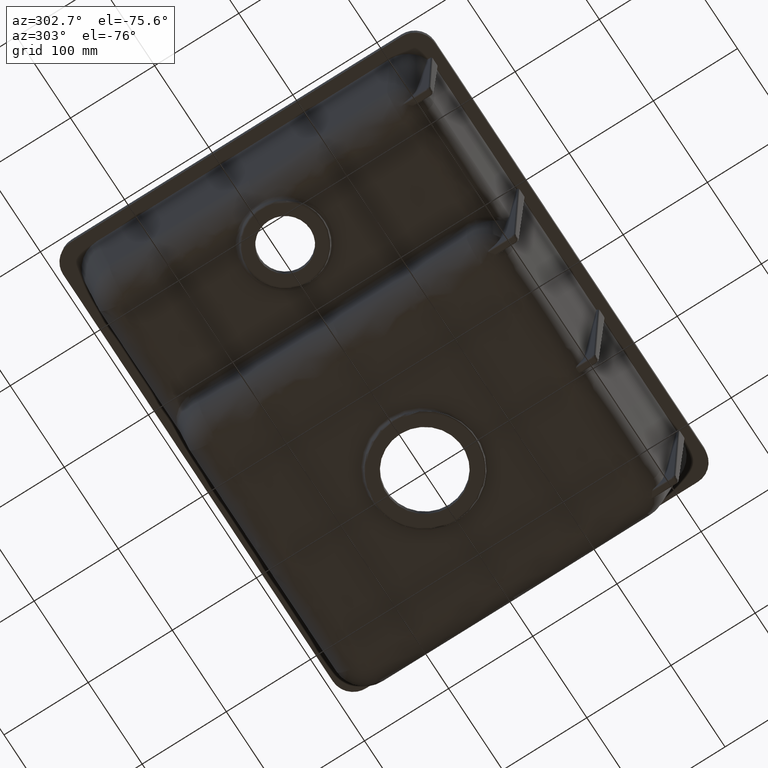
[diagram: clean part render]
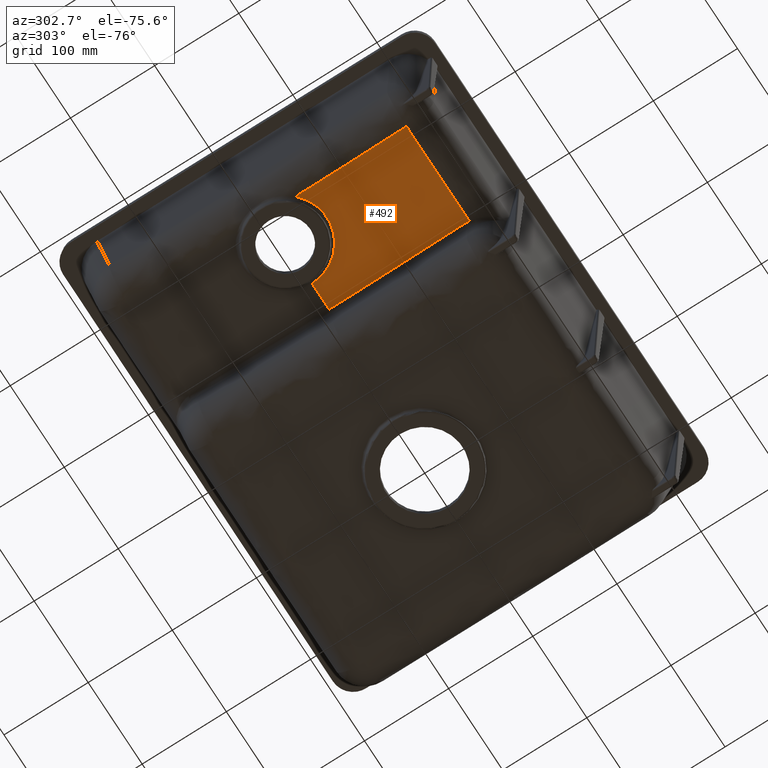
[diagram: same view with one face highlighted and labeled with its STEP entity id]
A machine part, auxiliary view. The second image highlights one B-rep face of the part: STEP entity #492.
In plain terms, the highlighted face is a freeform B-spline surface patch.
Its self-contained STEP definition (entity closure, byte-faithful):
#56=B_SPLINE_SURFACE_WITH_KNOTS('',3,3,((#4859,#4860,#4861,#4862),(#4863,
#4864,#4865,#4866),(#4867,#4868,#4869,#4870),(#4871,#4872,#4873,#4874),
(#4875,#4876,#4877,#4878),(#4879,#4880,#4881,#4882),(#4883,#4884,#4885,
#4886),(#4887,#4888,#4889,#4890),(#4891,#4892,#4893,#4894),(#4895,#4896,
#4897,#4898),(#4899,#4900,#4901,#4902),(#4903,#4904,#4905,#4906),(#4907,
#4908,#4909,#4910),(#4911,#4912,#4913,#4914),(#4915,#4916,#4917,#4918),
(#4919,#4920,#4921,#4922),(#4923,#4924,#4925,#4926),(#4927,#4928,#4929,
#4930),(#4931,#4932,#4933,#4934),(#4935,#4936,#4937,#4938),(#4939,#4940,
#4941,#4942),(#4943,#4944,#4945,#4946),(#4947,#4948,#4949,#4950),(#4951,
#4952,#4953,#4954),(#4955,#4956,#4957,#4958),(#4959,#4960,#4961,#4962),
(#4963,#4964,#4965,#4966),(#4967,#4968,#4969,#4970)),.UNSPECIFIED.,.F.,
 .F.,.F.,(4,2,2,2,2,2,2,2,2,2,2,2,2,4),(4,4),(0.,0.0625,0.125,0.25,0.3125,
0.34375,0.375,0.5,0.5625,0.625,0.6875,0.75,0.875,1.),(0.,1.),
 .UNSPECIFIED.);
#210=FACE_OUTER_BOUND('',#753,.T.);
#492=ADVANCED_FACE('',(#210),#56,.T.);
#753=EDGE_LOOP('',(#1256,#1257,#1258,#1259,#1260,#1261,#1262));
#935=B_SPLINE_CURVE_WITH_KNOTS('',3,(#3983,#3984,#3985,#3986,#3987,#3988,
#3989,#3990,#3991,#3992,#3993,#3994,#3995,#3996),.UNSPECIFIED.,.F.,.F.,
(4,2,2,2,2,2,4),(0.,0.249999999999999,0.374999999999998,0.437499999999998,
0.468749999999998,0.499999999999999,1.),.UNSPECIFIED.);
#955=B_SPLINE_CURVE_WITH_KNOTS('',3,(#4569,#4570,#4571,#4572,#4573,#4574,
#4575,#4576,#4577,#4578,#4579,#4580,#4581,#4582,#4583,#4584,#4585,#4586,
#4587,#4588),.UNSPECIFIED.,.F.,.F.,(4,2,2,2,2,2,2,2,2,4),(0.,0.124999999999999,
0.249999999999997,0.312499999999996,0.374999999999996,0.499999999999997,
0.624999999999997,0.749999999999998,0.874999999999999,1.),.UNSPECIFIED.);
#961=B_SPLINE_CURVE_WITH_KNOTS('',3,(#4746,#4747,#4748,#4749,#4750,#4751,
#4752,#4753,#4754,#4755,#4756,#4757,#4758,#4759,#4760,#4761,#4762,#4763,
#4764,#4765,#4766,#4767,#4768,#4769,#4770,#4771,#4772,#4773,#4774,#4775,
#4776,#4777,#4778,#4779,#4780,#4781,#4782,#4783,#4784,#4785,#4786),
 .UNSPECIFIED.,.F.,.F.,(4,2,2,2,2,1,2,2,2,2,2,1,1,2,2,2,2,2,1,1,2,2,4),
(0.,0.124999999999995,0.187499999999993,0.218749999999992,0.234374999999992,
0.242187499999991,0.246093749999991,0.249999999999991,0.374999999999988,
0.437499999999986,0.468749999999985,0.484374999999985,0.492187499999984,
0.496093749999984,0.499999999999984,0.624999999999986,0.687499999999987,
0.718749999999988,0.734374999999988,0.742187499999989,0.746093749999989,
0.749999999999989,1.),.UNSPECIFIED.);
#962=B_SPLINE_CURVE_WITH_KNOTS('',3,(#4789,#4790,#4791,#4792),
 .UNSPECIFIED.,.F.,.F.,(4,4),(0.,1.),.UNSPECIFIED.);
#963=B_SPLINE_CURVE_WITH_KNOTS('',3,(#4793,#4794,#4795,#4796,#4797,#4798,
#4799,#4800,#4801,#4802,#4803,#4804,#4805,#4806,#4807,#4808,#4809,#4810,
#4811,#4812,#4813,#4814,#4815,#4816,#4817,#4818,#4819,#4820,#4821,#4822,
#4823,#4824,#4825,#4826,#4827,#4828,#4829,#4830,#4831,#4832,#4833,#4834,
#4835,#4836,#4837,#4838,#4839,#4840,#4841,#4842,#4843,#4844,#4845,#4846,
#4847,#4848,#4849),.UNSPECIFIED.,.F.,.F.,(4,2,2,2,1,1,2,2,2,2,2,1,1,2,2,
2,2,1,2,2,2,2,1,2,2,2,2,2,1,2,2,4),(0.,0.124999999999987,0.187499999999981,
0.218749999999978,0.234374999999976,0.242187499999975,0.246093749999975,
0.249999999999974,0.37499999999997,0.437499999999968,0.468749999999967,
0.484374999999967,0.492187499999967,0.496093749999967,0.499999999999967,
0.562499999999971,0.593749999999973,0.609374999999974,0.617187499999975,
0.624999999999975,0.687499999999979,0.718749999999981,0.734374999999982,
0.742187499999982,0.749999999999983,0.812499999999988,0.84374999999999,
0.859374999999992,0.867187499999992,0.871093749999993,0.874999999999993,
1.),.UNSPECIFIED.);
#964=B_SPLINE_CURVE_WITH_KNOTS('',3,(#4850,#4851,#4852,#4853),
 .UNSPECIFIED.,.F.,.F.,(4,4),(0.,1.),.UNSPECIFIED.);
#965=B_SPLINE_CURVE_WITH_KNOTS('',3,(#4855,#4856,#4857,#4858),
 .UNSPECIFIED.,.F.,.F.,(4,4),(0.,1.),.UNSPECIFIED.);
#1256=ORIENTED_EDGE('',*,*,#2367,.T.);
#1257=ORIENTED_EDGE('',*,*,#2368,.T.);
#1258=ORIENTED_EDGE('',*,*,#2313,.T.);
#1259=ORIENTED_EDGE('',*,*,#2369,.T.);
#1260=ORIENTED_EDGE('',*,*,#2353,.T.);
#1261=ORIENTED_EDGE('',*,*,#2370,.F.);
#1262=ORIENTED_EDGE('',*,*,#2371,.T.);
#2041=VERTEX_POINT('',#3975);
#2043=VERTEX_POINT('',#3982);
#2066=VERTEX_POINT('',#4366);
#2072=VERTEX_POINT('',#4484);
#2084=VERTEX_POINT('',#4787);
#2085=VERTEX_POINT('',#4788);
#2086=VERTEX_POINT('',#4854);
#2313=EDGE_CURVE('',#2041,#2043,#935,.T.);
#2353=EDGE_CURVE('',#2066,#2072,#955,.T.);
#2367=EDGE_CURVE('',#2084,#2085,#961,.T.);
#2368=EDGE_CURVE('',#2085,#2041,#962,.T.);
#2369=EDGE_CURVE('',#2043,#2066,#963,.T.);
#2370=EDGE_CURVE('',#2086,#2072,#964,.T.);
#2371=EDGE_CURVE('',#2086,#2084,#965,.T.);
#3975=CARTESIAN_POINT('',(-176.964456876952,-166.452582312166,-127.923734239926));
#3982=CARTESIAN_POINT('',(-293.226474482799,-166.501707001497,-128.585918841775));
#3983=CARTESIAN_POINT('',(-176.96445737304,-166.452852972989,-127.923694214781));
#3984=CARTESIAN_POINT('',(-187.010015845275,-166.462869704912,-128.115938924279));
#3985=CARTESIAN_POINT('',(-196.802232938002,-166.477173342721,-128.274422624157));
#3986=CARTESIAN_POINT('',(-211.24824845461,-166.487471975807,-128.461506659543));
#3987=CARTESIAN_POINT('',(-216.024744802025,-166.491154513136,-128.515427752267));
#3988=CARTESIAN_POINT('',(-223.154875165384,-166.498178450262,-128.583649012745));
#3989=CARTESIAN_POINT('',(-225.525816044325,-166.500712914673,-128.604279369802));
#3990=CARTESIAN_POINT('',(-229.076412684884,-166.504355877023,-128.632059810737));
#3991=CARTESIAN_POINT('',(-230.258974343892,-166.505539233637,-128.64079244194));
#3992=CARTESIAN_POINT('',(-232.62260661255,-166.507712083741,-128.657202672796));
#3993=CARTESIAN_POINT('',(-233.771520420506,-166.508679690637,-128.664685509865));
#3994=CARTESIAN_POINT('',(-254.387364824648,-166.522758618336,-128.789547899694));
#3995=CARTESIAN_POINT('',(-273.642578692747,-166.517605074117,-128.76072995739));
#3996=CARTESIAN_POINT('',(-293.226072798336,-166.501707809072,-128.585911407593));
#4366=CARTESIAN_POINT('',(-293.418554230145,-34.9930937256949,-133.850230019672));
#4484=CARTESIAN_POINT('',(-208.803564244212,0.,-133.850230019732));
#4569=CARTESIAN_POINT('',(-293.418554815,-34.9930930642775,-133.850228833807));
#4570=CARTESIAN_POINT('',(-289.793055837085,-38.6262537944203,-133.850228883221));
#4571=CARTESIAN_POINT('',(-285.594052335672,-41.6813835097078,-133.850228932635));
#4572=CARTESIAN_POINT('',(-276.694034714498,-46.2918994552667,-133.850229031463));
#4573=CARTESIAN_POINT('',(-272.002387754683,-47.853932012553,-133.850229080877));
#4574=CARTESIAN_POINT('',(-265.097774506618,-49.1369570098442,-133.850229154997));
#4575=CARTESIAN_POINT('',(-262.813992750974,-49.3915827681491,-133.850229179704));
#4576=CARTESIAN_POINT('',(-258.364140271183,-49.5935931867147,-133.850229229118));
#4577=CARTESIAN_POINT('',(-256.184812689611,-49.5483441484309,-133.850229253825));
#4578=CARTESIAN_POINT('',(-249.407567287704,-48.9402209724641,-133.850229327946));
#4579=CARTESIAN_POINT('',(-244.711528336831,-47.8837288498483,-133.85022937736));
#4580=CARTESIAN_POINT('',(-235.558489871828,-44.2654584161505,-133.850229476188));
#4581=CARTESIAN_POINT('',(-231.111249214222,-41.7010689062397,-133.850229525601));
#4582=CARTESIAN_POINT('',(-223.160653507134,-35.2513419932306,-133.850229624429));
#4583=CARTESIAN_POINT('',(-219.666573636073,-31.3718921037385,-133.850229673843));
#4584=CARTESIAN_POINT('',(-214.10716766273,-22.8722854832415,-133.850229772671));
#4585=CARTESIAN_POINT('',(-212.041894026679,-18.2629908122621,-133.850229822085));
#4586=CARTESIAN_POINT('',(-209.39366017639,-9.01402671397702,-133.850229920912));
#4587=CARTESIAN_POINT('',(-208.803563112613,-4.38102742814984,-133.850229970326));
#4588=CARTESIAN_POINT('',(-208.803564244377,-1.38351151365868E-13,-133.85023001974));
#4746=CARTESIAN_POINT('',(-176.956488945377,-6.6930257784281E-7,-132.459756683307));
#4747=CARTESIAN_POINT('',(-176.952193372384,-6.58968978575969,-132.459569132137));
#4748=CARTESIAN_POINT('',(-176.962935045715,-13.1180820890233,-132.42516467801));
#4749=CARTESIAN_POINT('',(-176.96074951962,-23.1055455688348,-132.322232642383));
#4750=CARTESIAN_POINT('',(-176.961948092636,-26.4701639847633,-132.279367738101));
#4751=CARTESIAN_POINT('',(-176.966600042602,-31.598341061756,-132.20223904307));
#4752=CARTESIAN_POINT('',(-176.968276141499,-33.3212574179961,-132.174390921624));
#4753=CARTESIAN_POINT('',(-176.97078650794,-35.9292783947458,-132.129410904804));
#4754=CARTESIAN_POINT('',(-176.971629940756,-36.8025574939614,-132.113882926755));
#4755=CARTESIAN_POINT('',(-176.972937002876,-38.118778799563,-132.089789001019));
#4756=CARTESIAN_POINT('',(-176.973601517953,-38.7784648117023,-132.077541548485));
#4757=CARTESIAN_POINT('',(-176.974292642857,-39.4405848986052,-132.064993361453));
#4758=CARTESIAN_POINT('',(-176.974760684091,-39.8825468721053,-132.056561073542));
#4759=CARTESIAN_POINT('',(-176.975031893449,-40.1345174103982,-132.051717687152));
#4760=CARTESIAN_POINT('',(-176.98191097778,-46.431515951586,-131.929975857509));
#4761=CARTESIAN_POINT('',(-176.979762635406,-52.7799152594119,-131.785365121803));
#4762=CARTESIAN_POINT('',(-176.997719244365,-62.7714724590502,-131.528611939619));
#4763=CARTESIAN_POINT('',(-177.005481429767,-66.1796752976054,-131.436388032454));
#4764=CARTESIAN_POINT('',(-177.018741204097,-71.4165875633393,-131.28809290205));
#4765=CARTESIAN_POINT('',(-177.023432957057,-73.1829512160727,-131.237001313639));
#4766=CARTESIAN_POINT('',(-177.030482471855,-75.8642118876181,-131.157874113609));
#4767=CARTESIAN_POINT('',(-177.033989610948,-77.2127731133576,-131.117688059241));
#4768=CARTESIAN_POINT('',(-177.03785030029,-78.800156046002,-131.069715034026));
#4769=CARTESIAN_POINT('',(-177.039432159326,-79.4834932228953,-131.048921745694));
#4770=CARTESIAN_POINT('',(-177.040467930134,-79.9397265518707,-131.035007682276));
#4771=CARTESIAN_POINT('',(-177.041060214369,-80.2066980140231,-131.026844768508));
#4772=CARTESIAN_POINT('',(-177.054720496131,-86.4857921980697,-130.834489205874));
#4773=CARTESIAN_POINT('',(-177.064067315769,-92.9080360751101,-130.626844769042));
#4774=CARTESIAN_POINT('',(-177.091942656231,-103.071061367989,-130.283701367833));
#4775=CARTESIAN_POINT('',(-177.103281716943,-106.546531489536,-130.164040776436));
#4776=CARTESIAN_POINT('',(-177.121844492735,-111.893913028014,-129.976630702851));
#4777=CARTESIAN_POINT('',(-177.128270599581,-113.698727884375,-129.912840813907));
#4778=CARTESIAN_POINT('',(-177.137868580975,-116.439678836213,-129.815176183869));
#4779=CARTESIAN_POINT('',(-177.142654950762,-117.818585230197,-129.765848919694));
#4780=CARTESIAN_POINT('',(-177.148104659855,-119.44209433285,-129.707434283801));
#4781=CARTESIAN_POINT('',(-177.150397787739,-120.141054751785,-129.682213833914));
#4782=CARTESIAN_POINT('',(-177.151915540084,-120.607733259302,-129.665358954893));
#4783=CARTESIAN_POINT('',(-177.15281153942,-120.886104493918,-129.655294203149));
#4784=CARTESIAN_POINT('',(-177.192101391493,-133.194812993317,-129.209914468237));
#4785=CARTESIAN_POINT('',(-177.236259412211,-146.570783287996,-128.705119052979));
#4786=CARTESIAN_POINT('',(-177.288811178532,-161.236092480892,-128.134055961454));
#4787=CARTESIAN_POINT('',(-176.955464648924,-3.29014593347665E-10,-132.459711961558));
#4788=CARTESIAN_POINT('',(-177.289002531656,-161.236092922753,-128.134084910413));
#4789=CARTESIAN_POINT('',(-177.28920046542,-161.236091384829,-128.134063637702));
#4790=CARTESIAN_POINT('',(-177.295639501322,-162.974424129808,-128.066377490108));
#4791=CARTESIAN_POINT('',(-177.19071089805,-164.713279980228,-127.996266966767));
#4792=CARTESIAN_POINT('',(-176.96638649254,-166.452831055832,-127.92373206768));
#4793=CARTESIAN_POINT('',(-293.226875970481,-166.501705220416,-128.585904320487));
#4794=CARTESIAN_POINT('',(-293.209287168885,-160.351956080775,-128.84884924384));
#4795=CARTESIAN_POINT('',(-293.196047746173,-154.480205986751,-129.099269283487));
#4796=CARTESIAN_POINT('',(-293.177632608975,-146.089883570665,-129.456112017399));
#4797=CARTESIAN_POINT('',(-293.171801877179,-143.362654937577,-129.571928374443));
#4798=CARTESIAN_POINT('',(-293.163488439094,-139.376106617241,-129.740956078619));
#4799=CARTESIAN_POINT('',(-293.160793631017,-138.064639093428,-129.796515841446));
#4800=CARTESIAN_POINT('',(-293.156900473394,-136.12350238307,-129.878681277839));
#4801=CARTESIAN_POINT('',(-293.154991556372,-135.159450110765,-129.919470444073));
#4802=CARTESIAN_POINT('',(-293.152842162414,-134.046123106409,-129.966544088747));
#4803=CARTESIAN_POINT('',(-293.151939168465,-133.571425643102,-129.986608425907));
#4804=CARTESIAN_POINT('',(-293.151341388661,-133.25550344934,-129.999960188018));
#4805=CARTESIAN_POINT('',(-293.151100385447,-133.12762097564,-130.005364388682));
#4806=CARTESIAN_POINT('',(-293.139538450967,-126.949177300037,-130.266423014534));
#4807=CARTESIAN_POINT('',(-293.132997716236,-121.280336086803,-130.504818803594));
#4808=CARTESIAN_POINT('',(-293.123853542935,-113.260710396199,-130.840284533173));
#4809=CARTESIAN_POINT('',(-293.121053804526,-110.66809231105,-130.948418450698));
#4810=CARTESIAN_POINT('',(-293.117674725164,-106.89986236934,-131.105087338481));
#4811=CARTESIAN_POINT('',(-293.116693766646,-105.663900233595,-131.156388302992));
#4812=CARTESIAN_POINT('',(-293.115574332426,-103.840087846394,-131.231956752632));
#4813=CARTESIAN_POINT('',(-293.115103428205,-102.935714157795,-131.269395228171));
#4814=CARTESIAN_POINT('',(-293.114747329858,-101.893782210228,-131.312468388391));
#4815=CARTESIAN_POINT('',(-293.114640740309,-101.450060884953,-131.330798658218));
#4816=CARTESIAN_POINT('',(-293.114580434598,-101.154873388324,-131.342990025664));
#4817=CARTESIAN_POINT('',(-293.114560795731,-101.04706884122,-131.347441721902));
#4818=CARTESIAN_POINT('',(-293.114148231439,-97.8775387275503,-131.478281415188));
#4819=CARTESIAN_POINT('',(-293.115588464224,-94.9953791811796,-131.596657309926));
#4820=CARTESIAN_POINT('',(-293.118807222751,-90.823338022405,-131.767070133027));
#4821=CARTESIAN_POINT('',(-293.120078682944,-89.457853485941,-131.822682570894));
#4822=CARTESIAN_POINT('',(-293.122272463756,-87.4473543388284,-131.904313472942));
#4823=CARTESIAN_POINT('',(-293.123443078603,-86.4515361822979,-131.944681985279));
#4824=CARTESIAN_POINT('',(-293.1247409375,-85.4698478569792,-131.984380089584));
#4825=CARTESIAN_POINT('',(-293.12563759917,-84.8185266426042,-132.010696512891));
#4826=CARTESIAN_POINT('',(-293.126024317756,-84.5461984805717,-132.021692314607));
#4827=CARTESIAN_POINT('',(-293.131052504679,-81.1776090484315,-132.157566684829));
#4828=CARTESIAN_POINT('',(-293.137642817581,-78.2990099042952,-132.272695421809));
#4829=CARTESIAN_POINT('',(-293.148822389823,-74.1537171173065,-132.436915805788));
#4830=CARTESIAN_POINT('',(-293.152804881226,-72.8007104221743,-132.490243813532));
#4831=CARTESIAN_POINT('',(-293.159286878444,-70.8141069407337,-132.568117644776));
#4832=CARTESIAN_POINT('',(-293.162658674417,-69.831530512954,-132.606525015305));
#4833=CARTESIAN_POINT('',(-293.166283513982,-68.8649858424254,-132.644138068193));
#4834=CARTESIAN_POINT('',(-293.16876492186,-68.2241780948461,-132.669036921755));
#4835=CARTESIAN_POINT('',(-293.169825212371,-67.957005619514,-132.679405091401));
#4836=CARTESIAN_POINT('',(-293.183530057173,-64.6422525211235,-132.807798293715));
#4837=CARTESIAN_POINT('',(-293.197691864428,-61.8213446146603,-132.915391264231));
#4838=CARTESIAN_POINT('',(-293.219435638872,-57.7777162533161,-133.06697923936));
#4839=CARTESIAN_POINT('',(-293.226856717026,-56.4610775202563,-133.115874984296));
#4840=CARTESIAN_POINT('',(-293.238606064446,-54.5325574342223,-133.186768231538));
#4841=CARTESIAN_POINT('',(-293.242629614577,-53.897454946046,-133.209990918925));
#4842=CARTESIAN_POINT('',(-293.248906783507,-52.9563340412307,-133.244212357465));
#4843=CARTESIAN_POINT('',(-293.252106201364,-52.4886565577675,-133.2611699286));
#4844=CARTESIAN_POINT('',(-293.255415410549,-52.0252874961239,-133.277897777533));
#4845=CARTESIAN_POINT('',(-293.257648233362,-51.7173302700328,-133.288998627443));
#4846=CARTESIAN_POINT('',(-293.258518613759,-51.598514689201,-133.293277009142));
#4847=CARTESIAN_POINT('',(-293.304837931162,-45.4041044111552,-133.515891515861));
#4848=CARTESIAN_POINT('',(-293.359315640912,-39.9465432711315,-133.699293492704));
#4849=CARTESIAN_POINT('',(-293.418554815003,-34.9930930640392,-133.850228833814));
#4850=CARTESIAN_POINT('',(-180.541968281507,1.27884138035572E-13,-132.616302091901));
#4851=CARTESIAN_POINT('',(-189.962500269075,1.18513231230239E-13,-133.027611401178));
#4852=CARTESIAN_POINT('',(-199.383032256644,1.57477153570825E-13,-133.438920710455));
#4853=CARTESIAN_POINT('',(-208.803564244212,1.41156075431187E-13,-133.850230019732));
#4854=CARTESIAN_POINT('',(-180.541968281507,-1.20403687020598E-9,-132.616302091901));
#4855=CARTESIAN_POINT('',(-180.541968281507,1.26028495559533E-13,-132.616302091901));
#4856=CARTESIAN_POINT('',(-179.346656078956,1.25483808327338E-13,-132.564113634068));
#4857=CARTESIAN_POINT('',(-178.151343876405,1.24947743006304E-13,-132.511925176234));
#4858=CARTESIAN_POINT('',(-176.956031673855,1.2443536505891E-13,-132.459736718401));
#4859=CARTESIAN_POINT('',(-293.936662545748,-34.4660167800293,-133.85023001974));
#4860=CARTESIAN_POINT('',(-326.634952053084,-66.1318346280145,-131.862864586272));
#4861=CARTESIAN_POINT('',(-359.333241560421,-97.7976524759998,-129.875499152805));
#4862=CARTESIAN_POINT('',(-392.031531067757,-129.463470323985,-127.888133719338));
#4863=CARTESIAN_POINT('',(-292.140724164066,-36.3205121675632,-133.85023001974));
#4864=CARTESIAN_POINT('',(-323.18898668907,-69.6901565272213,-131.862864586272));
#4865=CARTESIAN_POINT('',(-354.237249214075,-103.059800886879,-129.875499152805));
#4866=CARTESIAN_POINT('',(-385.285511739079,-136.429445246538,-127.888133719338));
#4867=CARTESIAN_POINT('',(-290.197948989727,-38.0348351286552,-133.85023001974));
#4868=CARTESIAN_POINT('',(-319.461277526483,-72.9795219124211,-131.862864586272));
#4869=CARTESIAN_POINT('',(-348.724606063239,-107.924208696187,-129.875499152805));
#4870=CARTESIAN_POINT('',(-377.987934599995,-142.868895479953,-127.888133719338));
#4871=CARTESIAN_POINT('',(-286.093044545675,-41.1252925825565,-133.85023001974));
#4872=CARTESIAN_POINT('',(-311.584972481128,-78.9093519409592,-131.862864586272));
#4873=CARTESIAN_POINT('',(-337.076900416582,-116.693411299362,-129.875499152805));
#4874=CARTESIAN_POINT('',(-362.568828352035,-154.477470657765,-127.888133719338));
#4875=CARTESIAN_POINT('',(-283.931265649347,-42.501292427961,-133.85023001974));
#4876=CARTESIAN_POINT('',(-307.437048878969,-81.5495582289452,-131.862864586272));
#4877=CARTESIAN_POINT('',(-330.94283210859,-120.59782402993,-129.875499152805));
#4878=CARTESIAN_POINT('',(-354.448615338212,-159.646089830914,-127.888133719338));
#4879=CARTESIAN_POINT('',(-277.247761177251,-46.074094095969,-133.85023001974));
#4880=CARTESIAN_POINT('',(-294.613042690346,-88.4048885264777,-131.862864586272));
#4881=CARTESIAN_POINT('',(-311.978324203442,-130.735682956987,-129.875499152805));
#4882=CARTESIAN_POINT('',(-329.343605716537,-173.066477387495,-127.888133719338));
#4883=CARTESIAN_POINT('',(-272.53311317082,-47.7034105225901,-133.85023001974));
#4884=CARTESIAN_POINT('',(-285.56678926685,-91.531147216877,-131.862864586272));
#4885=CARTESIAN_POINT('',(-298.600465362881,-135.358883911164,-129.875499152805));
#4886=CARTESIAN_POINT('',(-311.634141458912,-179.186620605451,-127.888133719338));
#4887=CARTESIAN_POINT('',(-265.578572877418,-49.0695760162048,-133.85023001974));
#4888=CARTESIAN_POINT('',(-272.222731799103,-94.1524837953057,-131.862864586272));
#4889=CARTESIAN_POINT('',(-278.866890720787,-139.235391574407,-129.875499152805));
#4890=CARTESIAN_POINT('',(-285.511049642471,-184.318299353508,-127.888133719338));
#4891=CARTESIAN_POINT('',(-263.279030932583,-49.3485935222647,-133.85023001974));
#4892=CARTESIAN_POINT('',(-267.810474688378,-94.6878499702497,-131.862864586272));
#4893=CARTESIAN_POINT('',(-272.341918444173,-140.027106418235,-129.875499152805));
#4894=CARTESIAN_POINT('',(-276.873362199968,-185.36636286622,-127.888133719338));
#4895=CARTESIAN_POINT('',(-259.906348264801,-49.5315564112559,-133.85023001974));
#4896=CARTESIAN_POINT('',(-261.339123680165,-95.0389108890397,-131.862864586272));
#4897=CARTESIAN_POINT('',(-262.771899095529,-140.546265366823,-129.875499152805));
#4898=CARTESIAN_POINT('',(-264.204674510893,-186.053619844607,-127.888133719338));
#4899=CARTESIAN_POINT('',(-258.80319768105,-49.5535912095721,-133.85023001974));
#4900=CARTESIAN_POINT('',(-259.222448218652,-95.0811902637526,-131.862864586272));
#4901=CARTESIAN_POINT('',(-259.641698756253,-140.608789317933,-129.875499152805));
#4902=CARTESIAN_POINT('',(-260.060949293854,-186.136388372114,-127.888133719338));
#4903=CARTESIAN_POINT('',(-256.587810410685,-49.5244619662187,-133.85023001974));
#4904=CARTESIAN_POINT('',(-254.971663292274,-95.0252983886753,-131.862864586272));
#4905=CARTESIAN_POINT('',(-253.355516173863,-140.526134811132,-129.875499152805));
#4906=CARTESIAN_POINT('',(-251.739369055452,-186.026971233588,-127.888133719338));
#4907=CARTESIAN_POINT('',(-255.465454209427,-49.4725211042554,-133.85023001974));
#4908=CARTESIAN_POINT('',(-252.818136960263,-94.9256366112289,-131.862864586272));
#4909=CARTESIAN_POINT('',(-250.170819711099,-140.378752118202,-129.875499152805));
#4910=CARTESIAN_POINT('',(-247.523502461935,-185.831867625176,-127.888133719338));
#4911=CARTESIAN_POINT('',(-249.797591548865,-49.0116815679073,-133.85023001974));
#4912=CARTESIAN_POINT('',(-241.942898357705,-94.0413985455907,-131.862864586272));
#4913=CARTESIAN_POINT('',(-234.088205166545,-139.071115523274,-129.875499152805));
#4914=CARTESIAN_POINT('',(-226.233511975385,-184.100832500958,-127.888133719338));
#4915=CARTESIAN_POINT('',(-245.074688866347,-47.9877432479877,-133.85023001974));
#4916=CARTESIAN_POINT('',(-232.880806234967,-92.0767119943603,-131.862864586272));
#4917=CARTESIAN_POINT('',(-220.686923603587,-136.165680740733,-129.875499152805));
#4918=CARTESIAN_POINT('',(-208.493040972207,-180.254649487105,-127.888133719338));
#4919=CARTESIAN_POINT('',(-238.15976706938,-45.3114657351177,-133.85023001974));
#4920=CARTESIAN_POINT('',(-219.61276694684,-86.9415917096645,-131.862864586272));
#4921=CARTESIAN_POINT('',(-201.0657668243,-128.571717684211,-129.875499152805));
#4922=CARTESIAN_POINT('',(-182.518766701759,-170.201843658758,-127.888133719338));
#4923=CARTESIAN_POINT('',(-235.885018324327,-44.2316673805852,-133.85023001974));
#4924=CARTESIAN_POINT('',(-215.24808190684,-84.8697234497117,-131.862864586272));
#4925=CARTESIAN_POINT('',(-194.611145489354,-125.507779518838,-129.875499152805));
#4926=CARTESIAN_POINT('',(-173.974209071868,-166.145835587965,-127.888133719338));
#4927=CARTESIAN_POINT('',(-231.484515681018,-41.7059836775847,-133.85023001974));
#4928=CARTESIAN_POINT('',(-206.804596402126,-80.0235557583443,-131.862864586272));
#4929=CARTESIAN_POINT('',(-182.124677123234,-118.341127839104,-129.875499152805));
#4930=CARTESIAN_POINT('',(-157.444757844342,-156.658699919864,-127.888133719338));
#4931=CARTESIAN_POINT('',(-229.35912335767,-40.2600966894543,-133.85023001974));
#4932=CARTESIAN_POINT('',(-202.726489710994,-77.2492531808198,-131.862864586272));
#4933=CARTESIAN_POINT('',(-176.093856064318,-114.238409672185,-129.875499152805));
#4934=CARTESIAN_POINT('',(-149.461222417642,-151.227566163551,-127.888133719338));
#4935=CARTESIAN_POINT('',(-225.343037093517,-37.0393281620208,-133.85023001974));
#4936=CARTESIAN_POINT('',(-195.020604973345,-71.0693881563599,-131.862864586272));
#4937=CARTESIAN_POINT('',(-164.698172853172,-105.099448150699,-129.875499152805));
#4938=CARTESIAN_POINT('',(-134.375740733,-139.129508145038,-127.888133719338));
#4939=CARTESIAN_POINT('',(-223.452681678745,-35.2646136474156,-133.85023001974));
#4940=CARTESIAN_POINT('',(-191.393476475272,-67.6641461888632,-131.862864586272));
#4941=CARTESIAN_POINT('',(-159.334271271799,-100.063678730311,-129.875499152805));
#4942=CARTESIAN_POINT('',(-127.275066068326,-132.463211271758,-127.888133719338));
#4943=CARTESIAN_POINT('',(-219.978082378511,-31.4489025295442,-133.85023001974));
#4944=CARTESIAN_POINT('',(-184.726572440838,-60.3427322220028,-131.862864586272));
#4945=CARTESIAN_POINT('',(-149.475062503164,-89.2365619144614,-129.875499152805));
#4946=CARTESIAN_POINT('',(-114.22355256549,-118.13039160692,-127.888133719338));
#4947=CARTESIAN_POINT('',(-218.394067304514,-29.4082096156226,-133.85023001974));
#4948=CARTESIAN_POINT('',(-181.687235937566,-56.4271429280226,-131.862864586272));
#4949=CARTESIAN_POINT('',(-144.980404570619,-83.4460762404227,-129.875499152805));
#4950=CARTESIAN_POINT('',(-108.273573203672,-110.465009552823,-127.888133719338));
#4951=CARTESIAN_POINT('',(-214.173629427716,-23.0083491739791,-133.85023001974));
#4952=CARTESIAN_POINT('',(-173.589250565264,-44.1473800801621,-131.862864586272));
#4953=CARTESIAN_POINT('',(-133.004871702812,-65.2864109863451,-129.875499152805));
#4954=CARTESIAN_POINT('',(-92.4204928403596,-86.4254418925282,-127.888133719338));
#4955=CARTESIAN_POINT('',(-212.082622911354,-18.3738640834885,-133.85023001974));
#4956=CARTESIAN_POINT('',(-169.577121805835,-35.2549396352334,-131.862864586272));
#4957=CARTESIAN_POINT('',(-127.071620700316,-52.1360151869783,-129.875499152805));
#4958=CARTESIAN_POINT('',(-84.5661195947971,-69.0170907387232,-127.888133719338));
#4959=CARTESIAN_POINT('',(-209.400764898173,-9.06963172451028,-133.85023001974));
#4960=CARTESIAN_POINT('',(-164.431293909463,-17.402399272603,-131.862864586272));
#4961=CARTESIAN_POINT('',(-119.461822920753,-25.7351668206957,-129.875499152805));
#4962=CARTESIAN_POINT('',(-74.4923519320423,-34.0679343687884,-127.888133719338));
#4963=CARTESIAN_POINT('',(-208.803564244377,-4.40731371465931,-133.85023001974));
#4964=CARTESIAN_POINT('',(-163.285412297189,-8.4565542804618,-131.862864586272));
#4965=CARTESIAN_POINT('',(-117.76726035,-12.5057948462643,-129.875499152805));
#4966=CARTESIAN_POINT('',(-72.2491084028111,-16.5550354120668,-127.888133719338));
#4967=CARTESIAN_POINT('',(-208.803564244377,-1.38351151365868E-13,-133.85023001974));
#4968=CARTESIAN_POINT('',(-163.285412297189,-1.19592788068294E-13,-131.862864586272));
#4969=CARTESIAN_POINT('',(-117.76726035,-9.68688602525724E-14,-129.875499152805));
#4970=CARTESIAN_POINT('',(-72.2491084028111,-7.50456095984508E-14,-127.888133719338));